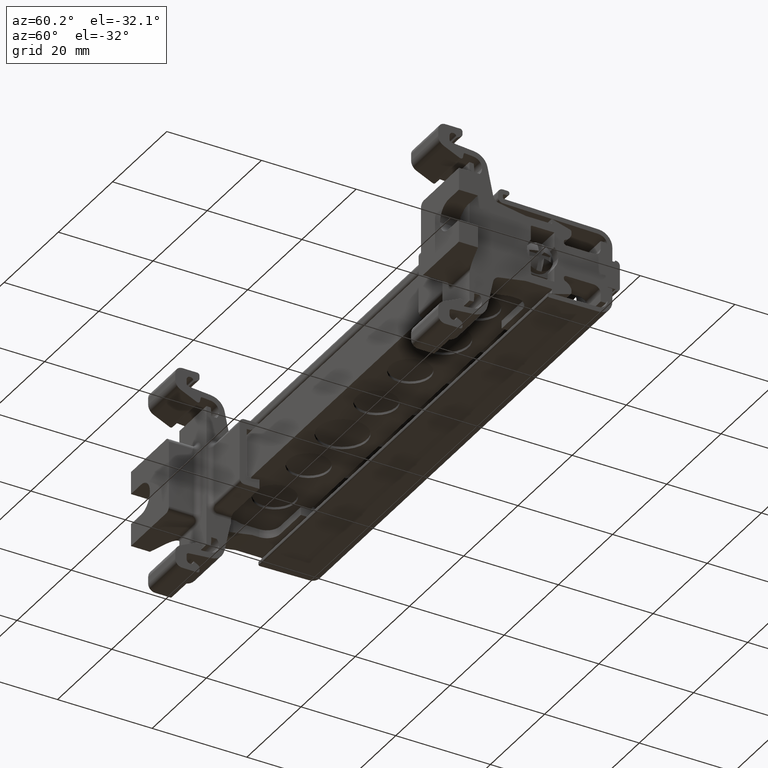
[diagram: clean part render]
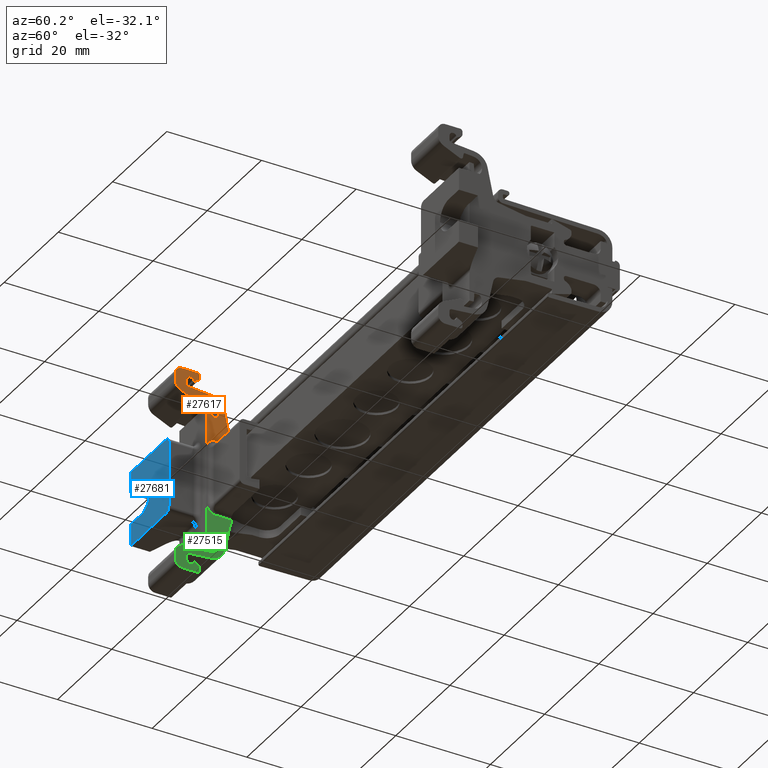
[diagram: same view with three faces highlighted in distinct colors, each labeled with its STEP entity id]
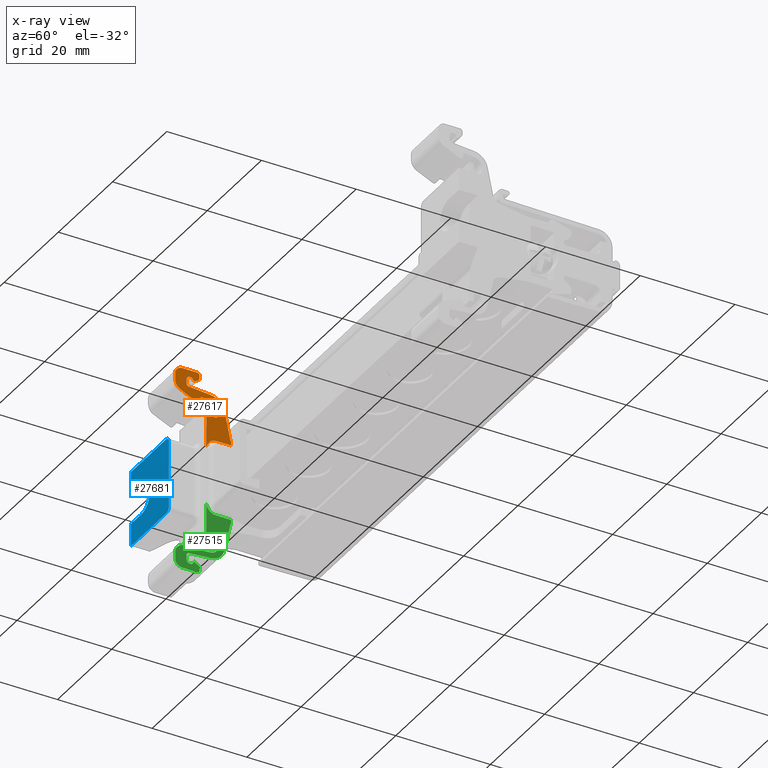
[diagram: x-ray of the same camera — body ghosted, the three highlighted faces saturated]
A machine part, auxiliary view with three faces highlighted in distinct colors.
The next image is the same camera in x-ray (body ghosted, the three faces saturated) — at least one of them is partly hidden behind the body in this view.
Their STEP definitions:

[orange] entity #27617 — the highlighted planar face has unit normal (1, -0, 0).
#2 = ORIENTED_EDGE ( 'NONE', *, *, #17603, .T. ) ;
#5 = ORIENTED_EDGE ( 'NONE', *, *, #17605, .T. ) ;
#7 = ORIENTED_EDGE ( 'NONE', *, *, #17553, .T. ) ;
#20 = ORIENTED_EDGE ( 'NONE', *, *, #17567, .T. ) ;
#21 = ORIENTED_EDGE ( 'NONE', *, *, #17624, .T. ) ;
#22 = ORIENTED_EDGE ( 'NONE', *, *, #17576, .T. ) ;
#33 = ORIENTED_EDGE ( 'NONE', *, *, #10525, .T. ) ;
#35 = ORIENTED_EDGE ( 'NONE', *, *, #17746, .F. ) ;
#41 = ORIENTED_EDGE ( 'NONE', *, *, #17616, .T. ) ;
#54 = ORIENTED_EDGE ( 'NONE', *, *, #17560, .T. ) ;
#57 = ORIENTED_EDGE ( 'NONE', *, *, #17552, .T. ) ;
#62 = ORIENTED_EDGE ( 'NONE', *, *, #17611, .T. ) ;
#1207 = ORIENTED_EDGE ( 'NONE', *, *, #17548, .T. ) ;
#1208 = ORIENTED_EDGE ( 'NONE', *, *, #17604, .T. ) ;
#1210 = ORIENTED_EDGE ( 'NONE', *, *, #17592, .T. ) ;
#1212 = ORIENTED_EDGE ( 'NONE', *, *, #17575, .T. ) ;
#1215 = ORIENTED_EDGE ( 'NONE', *, *, #17569, .T. ) ;
#1216 = ORIENTED_EDGE ( 'NONE', *, *, #17554, .F. ) ;
#1225 = ORIENTED_EDGE ( 'NONE', *, *, #17623, .T. ) ;
#1231 = ORIENTED_EDGE ( 'NONE', *, *, #17610, .T. ) ;
#1232 = ORIENTED_EDGE ( 'NONE', *, *, #17587, .T. ) ;
#1237 = ORIENTED_EDGE ( 'NONE', *, *, #17573, .T. ) ;
#1238 = ORIENTED_EDGE ( 'NONE', *, *, #17710, .F. ) ;
#1246 = ORIENTED_EDGE ( 'NONE', *, *, #17586, .T. ) ;
#1249 = ORIENTED_EDGE ( 'NONE', *, *, #17571, .F. ) ;
#1250 = ORIENTED_EDGE ( 'NONE', *, *, #10480, .T. ) ;
#1253 = ORIENTED_EDGE ( 'NONE', *, *, #17768, .T. ) ;
#1255 = ORIENTED_EDGE ( 'NONE', *, *, #17620, .T. ) ;
#1256 = ORIENTED_EDGE ( 'NONE', *, *, #26819, .T. ) ;
#1259 = ORIENTED_EDGE ( 'NONE', *, *, #17596, .T. ) ;
#1262 = ORIENTED_EDGE ( 'NONE', *, *, #17588, .T. ) ;
#1263 = ORIENTED_EDGE ( 'NONE', *, *, #17639, .T. ) ;
#3205 = AXIS2_PLACEMENT_3D ( 'NONE', #18167, #18178, #18182 ) ;
#5307 = EDGE_LOOP ( 'NONE', ( #1249, #62, #22, #1262, #1231, #1215, #1212, #1210, #1232, #1259, #2, #20, #41, #1237, #54, #5, #1208, #1263, #1255, #1246, #1256, #1216, #7, #1207, #1250, #57, #33, #1238, #35, #1253, #21, #1225 ) ) ;
#5889 = CARTESIAN_POINT ( 'NONE',  ( -51.95269769582420600, 44.64504681959599700, 52.51835480252169900 ) ) ;
#5891 = DIRECTION ( 'NONE',  ( -1.000000000000000000, 7.897574987183420400E-015, -3.511194205269045200E-015 ) ) ;
#5892 = DIRECTION ( 'NONE',  ( -6.938893903906565700E-015, -0.9999999999999851200, -1.731738814847284500E-007 ) ) ;
#7301 = VERTEX_POINT ( 'NONE', #15322 ) ;
#7308 = VERTEX_POINT ( 'NONE', #23636 ) ;
#7312 = VERTEX_POINT ( 'NONE', #23626 ) ;
#7316 = VERTEX_POINT ( 'NONE', #23638 ) ;
#7332 = VERTEX_POINT ( 'NONE', #23652 ) ;
#7342 = VERTEX_POINT ( 'NONE', #23639 ) ;
#7357 = VERTEX_POINT ( 'NONE', #23644 ) ;
#7361 = VERTEX_POINT ( 'NONE', #23671 ) ;
#7362 = VERTEX_POINT ( 'NONE', #23614 ) ;
#7363 = VERTEX_POINT ( 'NONE', #23631 ) ;
#7365 = VERTEX_POINT ( 'NONE', #23623 ) ;
#7366 = VERTEX_POINT ( 'NONE', #23632 ) ;
#7368 = VERTEX_POINT ( 'NONE', #23702 ) ;
#7369 = VERTEX_POINT ( 'NONE', #23690 ) ;
#7372 = VERTEX_POINT ( 'NONE', #23688 ) ;
#7373 = VERTEX_POINT ( 'NONE', #23699 ) ;
#7379 = VERTEX_POINT ( 'NONE', #23704 ) ;
#7380 = VERTEX_POINT ( 'NONE', #23721 ) ;
#7387 = VERTEX_POINT ( 'NONE', #23709 ) ;
#7398 = VERTEX_POINT ( 'NONE', #23725 ) ;
#7399 = VERTEX_POINT ( 'NONE', #23703 ) ;
#7403 = VERTEX_POINT ( 'NONE', #23735 ) ;
#7404 = VERTEX_POINT ( 'NONE', #23706 ) ;
#7408 = VERTEX_POINT ( 'NONE', #23691 ) ;
#7409 = VERTEX_POINT ( 'NONE', #23705 ) ;
#7415 = VERTEX_POINT ( 'NONE', #23700 ) ;
#7416 = VERTEX_POINT ( 'NONE', #23731 ) ;
#7423 = VERTEX_POINT ( 'NONE', #23677 ) ;
#7426 = VERTEX_POINT ( 'NONE', #23680 ) ;
#7433 = VERTEX_POINT ( 'NONE', #23745 ) ;
#10480 = EDGE_CURVE ( 'NONE', #7301, #7368, #22672, .T. ) ;
#10525 = EDGE_CURVE ( 'NONE', #7316, #7357, #22839, .T. ) ;
#12797 = LINE ( 'NONE', #12834, #20196 ) ;
#12803 = DIRECTION ( 'NONE',  ( 1.000000000000000000, -7.897574987183420400E-015, 3.511194205269045200E-015 ) ) ;
#12805 = LINE ( 'NONE', #12806, #20244 ) ;
#12806 = CARTESIAN_POINT ( 'NONE',  ( -51.95269769582429800, 41.28123955800514700, 57.53060234232180600 ) ) ;
#12810 = CARTESIAN_POINT ( 'NONE',  ( -51.95269769582418500, 48.88003733662787200, 47.85295847066351600 ) ) ;
#12811 = DIRECTION ( 'NONE',  ( 5.042221445841812300E-015, 0.2031293010246979800, -0.9791519223620088800 ) ) ;
#12816 = DIRECTION ( 'NONE',  ( 6.250635833653541500E-015, 0.8660322215516831300, 0.4999881910948060800 ) ) ;
#12821 = DIRECTION ( 'NONE',  ( -1.000000000000000000, 7.897574987183420400E-015, -3.511194208363125300E-015 ) ) ;
#12823 = CARTESIAN_POINT ( 'NONE',  ( -51.95269769582429800, 40.52224083797240400, 57.53060022804000800 ) ) ;
#12825 = CARTESIAN_POINT ( 'NONE',  ( -51.95269769582429800, 39.36598576649544900, 56.71503077427480100 ) ) ;
#12831 = DIRECTION ( 'NONE',  ( -9.142168123262904200E-015, -1.000000000000000000, 0.0000000000000000000 ) ) ;
#12834 = CARTESIAN_POINT ( 'NONE',  ( -51.95269769582420600, 44.92394467542335000, 55.70617780505300200 ) ) ;
#12835 = LINE ( 'NONE', #12810, #20229 ) ;
#12838 = DIRECTION ( 'NONE',  ( -6.938893903907648100E-015, -0.9999999999999850100, -1.731738814847554800E-007 ) ) ;
#12840 = DIRECTION ( 'NONE',  ( -8.173542609765338500E-015, -0.9961947123350145500, 0.08715557994619575800 ) ) ;
#12845 = DIRECTION ( 'NONE',  ( 0.0000000000000000000, -4.039727375448119700E-006, 0.9999999999918401900 ) ) ;
#12847 = DIRECTION ( 'NONE',  ( -1.371325741291665700E-014, -1.000000000000000000, 0.0000000000000000000 ) ) ;
#12849 = DIRECTION ( 'NONE',  ( -1.000000000000000000, 7.897574987183420400E-015, -3.511194205269045200E-015 ) ) ;
#12850 = DIRECTION ( 'NONE',  ( -1.000000000000000000, 7.897574987183420400E-015, -3.511194208363125300E-015 ) ) ;
#12854 = CARTESIAN_POINT ( 'NONE',  ( -51.95269769582429800, 40.26324495096410100, 56.61584533913990200 ) ) ;
#12856 = CARTESIAN_POINT ( 'NONE',  ( -51.95269769582420600, 42.49563694983555700, 58.52385799001640300 ) ) ;
#12865 = CARTESIAN_POINT ( 'NONE',  ( -51.95269769582420600, 41.98963799605480300, 58.52385615666229800 ) ) ;
#12866 = DIRECTION ( 'NONE',  ( 1.387778780781444400E-014, 1.000000000000000000, 0.0000000000000000000 ) ) ;
#12870 = CARTESIAN_POINT ( 'NONE',  ( -51.95269769582429800, 41.98963583581539900, 59.17392918536440800 ) ) ;
#12873 = DIRECTION ( 'NONE',  ( 1.000000000000000000, -7.897574987183420400E-015, 3.511194208363125300E-015 ) ) ;
#12874 = DIRECTION ( 'NONE',  ( -1.371327003883342800E-014, -1.000000000000000000, 0.0000000000000000000 ) ) ;
#12877 = DIRECTION ( 'NONE',  ( -6.938893903906565700E-015, -0.9999999999999851200, -1.731738814847284500E-007 ) ) ;
#12881 = DIRECTION ( 'NONE',  ( 1.000000000000000000, -7.897574987183420400E-015, 3.511194208363125300E-015 ) ) ;
#12887 = CARTESIAN_POINT ( 'NONE',  ( -51.95269769582420600, 44.64504681959599700, 52.51835480252169900 ) ) ;
#12888 = LINE ( 'NONE', #12856, #20211 ) ;
#12894 = LINE ( 'NONE', #12898, #20279 ) ;
#12898 = CARTESIAN_POINT ( 'NONE',  ( -51.95269769582429800, 39.76324495096650200, 56.61584379062200200 ) ) ;
#12900 = DIRECTION ( 'NONE',  ( 0.0000000000000000000, -3.097035688948970800E-006, 0.9999999999952042800 ) ) ;
#12908 = DIRECTION ( 'NONE',  ( -6.664219426855471200E-015, -1.000000000000000000, -4.442812951236985500E-015 ) ) ;
#12909 = DIRECTION ( 'NONE',  ( -2.086763369158764800E-015, 0.1736115906440594800, 0.9848142035907279100 ) ) ;
#12914 = LINE ( 'NONE', #12938, #20189 ) ;
#12915 = DIRECTION ( 'NONE',  ( -1.387778780781442800E-014, -0.9999999999999850100, -1.731738918930855100E-007 ) ) ;
#12917 = CARTESIAN_POINT ( 'NONE',  ( -51.95269769582420600, 44.64504681959599700, 52.51835480252169900 ) ) ;
#12918 = DIRECTION ( 'NONE',  ( -8.673617587638691200E-015, -0.9999999999999850100, -1.731738795611567800E-007 ) ) ;
#12923 = CARTESIAN_POINT ( 'NONE',  ( -51.95269769582420600, 42.60328566554729700, 53.69303677529969600 ) ) ;
#12925 = DIRECTION ( 'NONE',  ( 1.000000000000000000, -7.897574987183420400E-015, 3.511194205269045200E-015 ) ) ;
#12928 = DIRECTION ( 'NONE',  ( 1.000000000000000000, -7.897574987183420400E-015, 3.511194205269045200E-015 ) ) ;
#12931 = CARTESIAN_POINT ( 'NONE',  ( -51.95269769582420600, 42.11087856375189600, 53.77984257062180300 ) ) ;
#12933 = LINE ( 'NONE', #12923, #20190 ) ;
#12938 = CARTESIAN_POINT ( 'NONE',  ( -51.95269769582429800, 41.98963461062935200, 59.67992767326950300 ) ) ;
#12946 = DIRECTION ( 'NONE',  ( 3.511195572921190500E-015, 1.731736892445320000E-007, -0.9999999999999850100 ) ) ;
#12947 = LINE ( 'NONE', #12969, #20304 ) ;
#12948 = DIRECTION ( 'NONE',  ( -5.314544553643840600E-015, -0.2508007137987740000, 0.9680387399056019600 ) ) ;
#12950 = CARTESIAN_POINT ( 'NONE',  ( -51.95269769582420600, 49.02563120575620600, 47.21495201310559500 ) ) ;
#12952 = CARTESIAN_POINT ( 'NONE',  ( -51.95269769582409900, 50.47768931561480300, 47.59115308380379600 ) ) ;
#12954 = DIRECTION ( 'NONE',  ( -1.000000000000000000, 7.897574987183420400E-015, -3.511194208363125300E-015 ) ) ;
#12969 = CARTESIAN_POINT ( 'NONE',  ( -51.95269769582420600, 43.05277200151800100, 54.66530018249660100 ) ) ;
#12970 = LINE ( 'NONE', #12950, #20266 ) ;
#12972 = DIRECTION ( 'NONE',  ( 9.251858538542620400E-015, 1.000000000000000000, 0.0000000000000000000 ) ) ;
#12976 = LINE ( 'NONE', #12980, #20254 ) ;
#12980 = CARTESIAN_POINT ( 'NONE',  ( -51.95269769582429800, 37.36598549717820800, 58.27021652569899900 ) ) ;
#12986 = DIRECTION ( 'NONE',  ( 8.173542609765152400E-015, 0.9961947123350202200, -0.08715557994613090700 ) ) ;
#13005 = CARTESIAN_POINT ( 'NONE',  ( -51.95269769582420600, 43.02662532753465300, 54.36644176879550400 ) ) ;
#13006 = DIRECTION ( 'NONE',  ( 0.0000000000000000000, -0.9999999999999850100, -1.731738826410915800E-007 ) ) ;
#13057 = VERTEX_POINT ( 'NONE', #22310 ) ;
#13061 = DIRECTION ( 'NONE',  ( -1.000000000000000000, 7.897574987183420400E-015, -3.511194205269045200E-015 ) ) ;
#13065 = VERTEX_POINT ( 'NONE', #21216 ) ;
#13526 = DIRECTION ( 'NONE',  ( 1.000000000000000000, -7.897574987183420400E-015, 3.511194208363125300E-015 ) ) ;
#13547 = CARTESIAN_POINT ( 'NONE',  ( -51.95269769582420600, 45.96882648293110000, 44.11624998369200100 ) ) ;
#13592 = DIRECTION ( 'NONE',  ( -6.938893903907222100E-015, -1.000000000000000000, 3.469446951953611000E-015 ) ) ;
#13745 = LINE ( 'NONE', #13908, #20397 ) ;
#13908 = CARTESIAN_POINT ( 'NONE',  ( -51.95269769582420600, 47.58809457843019400, 46.11624998369180200 ) ) ;
#13912 = DIRECTION ( 'NONE',  ( -7.897574987183881100E-015, -1.000000000000000000, 1.313518572567621900E-013 ) ) ;
#13970 = CARTESIAN_POINT ( 'NONE',  ( -51.95269769582409900, 49.14653714227029700, 45.11624998369160300 ) ) ;
#13996 = DIRECTION ( 'NONE',  ( -4.133769213702985100E-015, 0.0000000000000000000, 1.000000000000000000 ) ) ;
#14003 = LINE ( 'NONE', #13970, #21051 ) ;
#14746 = LINE ( 'NONE', #14769, #20165 ) ;
#14748 = DIRECTION ( 'NONE',  ( -3.511195572923805200E-015, -1.731740200024760200E-007, 0.9999999999999850100 ) ) ;
#14750 = DIRECTION ( 'NONE',  ( -8.173542609765183900E-015, -0.9961947123350194400, 0.08715557994613965000 ) ) ;
#14759 = CARTESIAN_POINT ( 'NONE',  ( -51.95269769582420600, 44.87820380573425900, 52.99986615940319700 ) ) ;
#14761 = DIRECTION ( 'NONE',  ( 7.897574987183420400E-015, 1.000000000000000000, 6.526769278752017400E-031 ) ) ;
#14769 = CARTESIAN_POINT ( 'NONE',  ( -51.95269769582420600, 44.96882679718349600, 51.26480513633030300 ) ) ;
#14791 = LINE ( 'NONE', #14759, #20176 ) ;
#14793 = LINE ( 'NONE', #14813, #20127 ) ;
#14797 = DIRECTION ( 'NONE',  ( -1.000000000000000000, 7.897574987183420400E-015, -3.511194205269045200E-015 ) ) ;
#14813 = CARTESIAN_POINT ( 'NONE',  ( -51.95269769582417800, 50.47768931561450500, 51.17200985974286500 ) ) ;
#14814 = CARTESIAN_POINT ( 'NONE',  ( -51.95269769582420600, 45.46882679718349600, 51.26480522291720400 ) ) ;
#14816 = DIRECTION ( 'NONE',  ( -1.387778780781000100E-014, -0.9999999999999851200, -1.731738780152424300E-007 ) ) ;
#14835 = CARTESIAN_POINT ( 'NONE',  ( -51.95269769582429800, 38.86598570617785200, 58.17992767326950300 ) ) ;
#14851 = CARTESIAN_POINT ( 'NONE',  ( -51.95269769582429800, 38.52068015481055600, 54.90244741816310600 ) ) ;
#14854 = DIRECTION ( 'NONE',  ( 8.641522570421947900E-015, 0.9062916780557625000, -0.4226528058428927800 ) ) ;
#14859 = DIRECTION ( 'NONE',  ( 1.000000000000000000, -7.897574987183420400E-015, 3.511194208363125300E-015 ) ) ;
#14861 = LINE ( 'NONE', #14851, #20228 ) ;
#14868 = DIRECTION ( 'NONE',  ( 9.251858538542962800E-015, 1.000000000000000000, 0.0000000000000000000 ) ) ;
#15322 = CARTESIAN_POINT ( 'NONE',  ( -51.95269769582420600, 44.96882667606955400, 51.96418201774530100 ) ) ;
#15934 = CIRCLE ( 'NONE', #15947, 2.000000000000191000 ) ;
#15947 = AXIS2_PLACEMENT_3D ( 'NONE', #5889, #5891, #5892 ) ;
#17548 = EDGE_CURVE ( 'NONE', #7372, #7301, #14746, .T. ) ;
#17552 = EDGE_CURVE ( 'NONE', #7368, #7316, #14791, .T. ) ;
#17553 = EDGE_CURVE ( 'NONE', #7366, #7372, #20172, .T. ) ;
#17554 = EDGE_CURVE ( 'NONE', #7366, #13065, #14793, .T. ) ;
#17560 = EDGE_CURVE ( 'NONE', #7362, #7342, #14861, .T. ) ;
#17567 = EDGE_CURVE ( 'NONE', #7404, #7408, #20215, .T. ) ;
#17569 = EDGE_CURVE ( 'NONE', #7369, #7416, #20216, .T. ) ;
#17571 = EDGE_CURVE ( 'NONE', #7426, #7365, #12835, .T. ) ;
#17573 = EDGE_CURVE ( 'NONE', #7312, #7362, #20205, .T. ) ;
#17575 = EDGE_CURVE ( 'NONE', #7416, #7380, #12805, .T. ) ;
#17576 = EDGE_CURVE ( 'NONE', #7373, #7409, #12797, .T. ) ;
#17586 = EDGE_CURVE ( 'NONE', #7332, #13057, #20246, .T. ) ;
#17587 = EDGE_CURVE ( 'NONE', #7415, #7403, #12888, .T. ) ;
#17588 = EDGE_CURVE ( 'NONE', #7409, #7363, #20212, .T. ) ;
#17592 = EDGE_CURVE ( 'NONE', #7380, #7415, #20214, .T. ) ;
#17596 = EDGE_CURVE ( 'NONE', #7403, #7379, #20226, .T. ) ;
#17603 = EDGE_CURVE ( 'NONE', #7379, #7404, #12914, .T. ) ;
#17604 = EDGE_CURVE ( 'NONE', #7308, #7399, #12933, .T. ) ;
#17605 = EDGE_CURVE ( 'NONE', #7342, #7308, #20191, .T. ) ;
#17610 = EDGE_CURVE ( 'NONE', #7363, #7369, #12894, .T. ) ;
#17611 = EDGE_CURVE ( 'NONE', #7426, #7373, #20273, .T. ) ;
#17616 = EDGE_CURVE ( 'NONE', #7408, #7312, #12976, .T. ) ;
#17620 = EDGE_CURVE ( 'NONE', #7361, #7332, #12947, .T. ) ;
#17623 = EDGE_CURVE ( 'NONE', #7423, #7365, #12970, .T. ) ;
#17624 = EDGE_CURVE ( 'NONE', #7387, #7423, #20296, .T. ) ;
#17639 = EDGE_CURVE ( 'NONE', #7399, #7361, #20247, .T. ) ;
#17710 = EDGE_CURVE ( 'NONE', #7433, #7357, #20399, .T. ) ;
#17746 = EDGE_CURVE ( 'NONE', #7398, #7433, #13745, .T. ) ;
#17768 = EDGE_CURVE ( 'NONE', #7398, #7387, #14003, .T. ) ;
#18167 = CARTESIAN_POINT ( 'NONE',  ( -51.95269769582409900, 50.47768931561450500, 28.56414688357875100 ) ) ;
#18178 = DIRECTION ( 'NONE',  ( 1.000000000000000000, -7.897574987183420400E-015, 3.511194208363125300E-015 ) ) ;
#18180 = FACE_OUTER_BOUND ( 'NONE', #5307, .T. ) ;
#18182 = DIRECTION ( 'NONE',  ( -7.897574987183420400E-015, -1.000000000000000000, 0.0000000000000000000 ) ) ;
#18184 = PLANE ( 'NONE',  #3205 ) ;
#20127 = VECTOR ( 'NONE', #14761, 1000.000000000000000 ) ;
#20165 = VECTOR ( 'NONE', #14748, 1000.000000000000000 ) ;
#20172 = CIRCLE ( 'NONE', #20177, 0.5000000000001605400 ) ;
#20176 = VECTOR ( 'NONE', #14750, 1000.000000000000000 ) ;
#20177 = AXIS2_PLACEMENT_3D ( 'NONE', #14814, #14797, #14816 ) ;
#20186 = AXIS2_PLACEMENT_3D ( 'NONE', #12865, #12881, #12847 ) ;
#20189 = VECTOR ( 'NONE', #12908, 1000.000000000000000 ) ;
#20190 = VECTOR ( 'NONE', #12909, 999.9999999999998900 ) ;
#20191 = CIRCLE ( 'NONE', #20192, 0.5000000000000010000 ) ;
#20192 = AXIS2_PLACEMENT_3D ( 'NONE', #12931, #12925, #12915 ) ;
#20196 = VECTOR ( 'NONE', #12840, 1000.000000000000000 ) ;
#20202 = AXIS2_PLACEMENT_3D ( 'NONE', #14835, #14859, #14868 ) ;
#20205 = CIRCLE ( 'NONE', #20217, 1.999999999999879000 ) ;
#20207 = AXIS2_PLACEMENT_3D ( 'NONE', #12887, #12849, #12877 ) ;
#20209 = AXIS2_PLACEMENT_3D ( 'NONE', #12823, #12821, #12831 ) ;
#20211 = VECTOR ( 'NONE', #12845, 1000.000000000000100 ) ;
#20212 = CIRCLE ( 'NONE', #20221, 0.5000000000000004400 ) ;
#20214 = CIRCLE ( 'NONE', #20186, 0.5059989537840523500 ) ;
#20215 = CIRCLE ( 'NONE', #20202, 1.500000000000001300 ) ;
#20216 = CIRCLE ( 'NONE', #20209, 0.7589987200356460600 ) ;
#20217 = AXIS2_PLACEMENT_3D ( 'NONE', #12825, #12803, #12838 ) ;
#20221 = AXIS2_PLACEMENT_3D ( 'NONE', #12854, #12850, #12866 ) ;
#20226 = CIRCLE ( 'NONE', #20227, 0.5059984879067919200 ) ;
#20227 = AXIS2_PLACEMENT_3D ( 'NONE', #12870, #12873, #12874 ) ;
#20228 = VECTOR ( 'NONE', #14854, 1000.000000000000000 ) ;
#20229 = VECTOR ( 'NONE', #12811, 1000.000000000000200 ) ;
#20244 = VECTOR ( 'NONE', #12816, 1000.000000000000100 ) ;
#20246 = CIRCLE ( 'NONE', #20207, 2.000000000000191000 ) ;
#20247 = CIRCLE ( 'NONE', #20264, 0.3000000000002351300 ) ;
#20254 = VECTOR ( 'NONE', #12946, 1000.000000000000000 ) ;
#20264 = AXIS2_PLACEMENT_3D ( 'NONE', #13005, #13061, #13006 ) ;
#20266 = VECTOR ( 'NONE', #12948, 999.9999999999998900 ) ;
#20273 = CIRCLE ( 'NONE', #20295, 3.199999923352062800 ) ;
#20277 = AXIS2_PLACEMENT_3D ( 'NONE', #12952, #12954, #12972 ) ;
#20279 = VECTOR ( 'NONE', #12900, 1000.000000000000000 ) ;
#20295 = AXIS2_PLACEMENT_3D ( 'NONE', #12917, #12928, #12918 ) ;
#20296 = CIRCLE ( 'NONE', #20277, 1.500000000000056800 ) ;
#20304 = VECTOR ( 'NONE', #12986, 1000.000000000000000 ) ;
#20397 = VECTOR ( 'NONE', #13912, 1000.000000000000000 ) ;
#20399 = CIRCLE ( 'NONE', #20405, 2.000000000000001800 ) ;
#20405 = AXIS2_PLACEMENT_3D ( 'NONE', #13547, #13526, #13592 ) ;
#20757 = VECTOR ( 'NONE', #22676, 999.9999999999998900 ) ;
#20826 = VECTOR ( 'NONE', #22886, 1000.000000000000000 ) ;
#21051 = VECTOR ( 'NONE', #13996, 1000.000000000000000 ) ;
#21216 = CARTESIAN_POINT ( 'NONE',  ( -51.95269769582419200, 46.12401784536173500, 51.17200985974284300 ) ) ;
#22310 = CARTESIAN_POINT ( 'NONE',  ( -51.95269769582419200, 46.64504681959616100, 52.51835514886948900 ) ) ;
#22672 = LINE ( 'NONE', #22693, #20757 ) ;
#22676 = DIRECTION ( 'NONE',  ( -4.186240814702636300E-015, -0.08716743514127640900, 0.9961936750707121000 ) ) ;
#22693 = CARTESIAN_POINT ( 'NONE',  ( -51.95269769582420600, 44.96882667606955400, 51.96418201774520900 ) ) ;
#22839 = LINE ( 'NONE', #22845, #20826 ) ;
#22845 = CARTESIAN_POINT ( 'NONE',  ( -51.95269769582420600, 43.96882648293839700, 49.54146295254189900 ) ) ;
#22886 = DIRECTION ( 'NONE',  ( 3.631720400235105500E-015, 0.0000000000000000000, -1.000000000000000000 ) ) ;
#23614 = CARTESIAN_POINT ( 'NONE',  ( -51.95269769582429800, 38.52068015481050600, 54.90244741816300700 ) ) ;
#23623 = CARTESIAN_POINT ( 'NONE',  ( -51.95269769582418500, 48.95920517769092600, 47.47134270486755300 ) ) ;
#23626 = CARTESIAN_POINT ( 'NONE',  ( -51.95269769582429800, 37.36598576649549800, 56.71503042792700500 ) ) ;
#23631 = CARTESIAN_POINT ( 'NONE',  ( -51.95269769582429800, 39.76324495096650200, 56.61584379062200200 ) ) ;
#23632 = CARTESIAN_POINT ( 'NONE',  ( -51.95269769582422700, 44.97751323073784100, 51.17200985974286500 ) ) ;
#23636 = CARTESIAN_POINT ( 'NONE',  ( -51.95269769582420600, 42.60328566554729700, 53.69303677529969600 ) ) ;
#23638 = CARTESIAN_POINT ( 'NONE',  ( -51.95269769582420600, 43.96882648293824800, 53.07942621626440200 ) ) ;
#23639 = CARTESIAN_POINT ( 'NONE',  ( -51.95269769582420600, 41.89955216083065200, 53.32669673159379900 ) ) ;
#23644 = CARTESIAN_POINT ( 'NONE',  ( -51.95269769582420600, 43.96882648293839700, 44.11624998369200100 ) ) ;
#23652 = CARTESIAN_POINT ( 'NONE',  ( -51.95269769582420600, 44.81935797948820300, 54.51074422719160900 ) ) ;
#23671 = CARTESIAN_POINT ( 'NONE',  ( -51.95269769582420600, 43.05277200151790100, 54.66530018249630300 ) ) ;
#23677 = CARTESIAN_POINT ( 'NONE',  ( -51.95269769582420600, 49.02563120575620600, 47.21495201310559500 ) ) ;
#23680 = CARTESIAN_POINT ( 'NONE',  ( -51.95269769582420600, 47.79345559758349500, 53.09064989785660100 ) ) ;
#23688 = CARTESIAN_POINT ( 'NONE',  ( -51.95269769582420600, 44.96882679718330400, 51.26480513633030300 ) ) ;
#23690 = CARTESIAN_POINT ( 'NONE',  ( -51.95269769582429800, 39.76324211793969700, 57.53059811375830200 ) ) ;
#23691 = CARTESIAN_POINT ( 'NONE',  ( -51.95269769582429800, 37.36598570617785200, 58.17992761150650000 ) ) ;
#23699 = CARTESIAN_POINT ( 'NONE',  ( -51.95269769582420600, 44.92394467542330000, 55.70617780505309500 ) ) ;
#23700 = CARTESIAN_POINT ( 'NONE',  ( -51.95269769582420600, 42.49563694983555700, 58.52385799001640300 ) ) ;
#23702 = CARTESIAN_POINT ( 'NONE',  ( -51.95269769582420600, 44.87820380573420200, 52.99986615940330400 ) ) ;
#23703 = CARTESIAN_POINT ( 'NONE',  ( -51.95269769582420600, 42.73118106645745200, 54.41852524598881000 ) ) ;
#23704 = CARTESIAN_POINT ( 'NONE',  ( -51.95269769582429800, 41.98963461062935200, 59.67992767326950300 ) ) ;
#23705 = CARTESIAN_POINT ( 'NONE',  ( -51.95269769582429800, 40.21966716099105100, 56.11774798297240400 ) ) ;
#23706 = CARTESIAN_POINT ( 'NONE',  ( -51.95269769582429800, 38.86598570617785200, 59.67992767326950300 ) ) ;
#23709 = CARTESIAN_POINT ( 'NONE',  ( -51.95269769582420600, 49.14653714227029700, 46.89975313341289400 ) ) ;
#23721 = CARTESIAN_POINT ( 'NONE',  ( -51.95269769582420600, 42.24263066486790300, 58.08564427782130200 ) ) ;
#23725 = CARTESIAN_POINT ( 'NONE',  ( -51.95269769582420600, 49.14653714227029700, 46.11624998369160300 ) ) ;
#23731 = CARTESIAN_POINT ( 'NONE',  ( -51.95269769582429800, 41.28123955800514700, 57.53060234232180600 ) ) ;
#23735 = CARTESIAN_POINT ( 'NONE',  ( -51.95269769582420600, 42.49563432372144700, 59.17393005663210200 ) ) ;
#23745 = CARTESIAN_POINT ( 'NONE',  ( -51.95269769582421300, 45.96882648293136200, 46.11624998369201500 ) ) ;
#26819 = EDGE_CURVE ( 'NONE', #13057, #13065, #15934, .T. ) ;
#27617 = ADVANCED_FACE ( 'NONE', ( #18180 ), #18184, .T. ) ;

[blue] entity #27681 — the highlighted planar face has unit normal (-0, -1, -0).
#400 = ORIENTED_EDGE ( 'NONE', *, *, #17707, .T. ) ;
#403 = ORIENTED_EDGE ( 'NONE', *, *, #17823, .T. ) ;
#423 = ORIENTED_EDGE ( 'NONE', *, *, #17788, .T. ) ;
#446 = ORIENTED_EDGE ( 'NONE', *, *, #17761, .F. ) ;
#453 = ORIENTED_EDGE ( 'NONE', *, *, #17807, .T. ) ;
#479 = ORIENTED_EDGE ( 'NONE', *, *, #17753, .F. ) ;
#484 = ORIENTED_EDGE ( 'NONE', *, *, #17809, .T. ) ;
#545 = ORIENTED_EDGE ( 'NONE', *, *, #17835, .F. ) ;
#554 = ORIENTED_EDGE ( 'NONE', *, *, #17837, .F. ) ;
#569 = ORIENTED_EDGE ( 'NONE', *, *, #26808, .T. ) ;
#575 = ORIENTED_EDGE ( 'NONE', *, *, #17808, .F. ) ;
#3269 = AXIS2_PLACEMENT_3D ( 'NONE', #18019, #18048, #18053 ) ;
#5872 = DIRECTION ( 'NONE',  ( 7.897574987183420400E-015, 1.000000000000000000, 2.740021935547334900E-029 ) ) ;
#5884 = DIRECTION ( 'NONE',  ( -1.000000000000000000, 8.540177112501197500E-015, 0.0000000000000000000 ) ) ;
#5902 = CARTESIAN_POINT ( 'NONE',  ( -65.20269769582419900, 37.74082521647829900, 38.07764998369125200 ) ) ;
#7405 = VERTEX_POINT ( 'NONE', #23689 ) ;
#7428 = VERTEX_POINT ( 'NONE', #23684 ) ;
#7448 = VERTEX_POINT ( 'NONE', #23777 ) ;
#7459 = VERTEX_POINT ( 'NONE', #23761 ) ;
#7462 = VERTEX_POINT ( 'NONE', #23778 ) ;
#7467 = VERTEX_POINT ( 'NONE', #23738 ) ;
#7475 = VERTEX_POINT ( 'NONE', #23780 ) ;
#7477 = VERTEX_POINT ( 'NONE', #23737 ) ;
#7550 = VERTEX_POINT ( 'NONE', #23854 ) ;
#13069 = VERTEX_POINT ( 'NONE', #21162 ) ;
#13149 = VERTEX_POINT ( 'NONE', #21164 ) ;
#13509 = LINE ( 'NONE', #13554, #20349 ) ;
#13554 = CARTESIAN_POINT ( 'NONE',  ( -35.46027626311610700, 37.74082521647805100, 46.07664888101810200 ) ) ;
#13570 = DIRECTION ( 'NONE',  ( -1.000000000000000000, 7.897574987183420400E-015, -3.511194208363125300E-015 ) ) ;
#13834 = CARTESIAN_POINT ( 'NONE',  ( -35.46027626311600000, 37.74082521647805100, 30.07865108636455200 ) ) ;
#13892 = LINE ( 'NONE', #13834, #20404 ) ;
#13895 = DIRECTION ( 'NONE',  ( -1.000000000000000000, 7.897574987183420400E-015, -3.511194208363125300E-015 ) ) ;
#13925 = LINE ( 'NONE', #13933, #20582 ) ;
#13933 = CARTESIAN_POINT ( 'NONE',  ( -68.95269769582419900, 37.74082521647835600, 30.07865108636445200 ) ) ;
#13966 = DIRECTION ( 'NONE',  ( -3.552941225665730200E-015, 5.515564554018680000E-029, 1.000000000000000000 ) ) ;
#14160 = LINE ( 'NONE', #14222, #20269 ) ;
#14192 = DIRECTION ( 'NONE',  ( 1.000000000000000000, -7.897574987183420400E-015, 6.325164568388729900E-045 ) ) ;
#14222 = CARTESIAN_POINT ( 'NONE',  ( -35.46027626311610700, 37.74082521647805100, 41.32764998369124500 ) ) ;
#15861 = CIRCLE ( 'NONE', #15907, 3.250000000000002700 ) ;
#15907 = AXIS2_PLACEMENT_3D ( 'NONE', #5902, #5872, #5884 ) ;
#16101 = AXIS2_PLACEMENT_3D ( 'NONE', #16934, #16902, #16909 ) ;
#16109 = CIRCLE ( 'NONE', #16112, 1.000000000000000900 ) ;
#16112 = AXIS2_PLACEMENT_3D ( 'NONE', #16916, #16919, #16898 ) ;
#16126 = VECTOR ( 'NONE', #16905, 1000.000000000000000 ) ;
#16146 = VECTOR ( 'NONE', #17021, 1000.000000000000000 ) ;
#16155 = VECTOR ( 'NONE', #16959, 1000.000000000000000 ) ;
#16158 = CIRCLE ( 'NONE', #16101, 3.250000000000002700 ) ;
#16184 = CIRCLE ( 'NONE', #16191, 1.000000000000000900 ) ;
#16191 = AXIS2_PLACEMENT_3D ( 'NONE', #17001, #16999, #17014 ) ;
#16898 = DIRECTION ( 'NONE',  ( -1.000000000000000000, 6.938893903907222100E-015, -6.938893903907222100E-015 ) ) ;
#16901 = CARTESIAN_POINT ( 'NONE',  ( -54.95269769582430500, 37.74082521647810000, 71.07764998369130200 ) ) ;
#16902 = DIRECTION ( 'NONE',  ( 7.897574987183420400E-015, 1.000000000000000000, 2.740021935547334900E-029 ) ) ;
#16905 = DIRECTION ( 'NONE',  ( 3.511194208363125300E-015, -2.757782277009340000E-029, -1.000000000000000000 ) ) ;
#16909 = DIRECTION ( 'NONE',  ( -1.000000000000000000, 8.540177112501197500E-015, 0.0000000000000000000 ) ) ;
#16916 = CARTESIAN_POINT ( 'NONE',  ( -55.95269769582419900, 37.74082521647825000, 31.07865108636449800 ) ) ;
#16919 = DIRECTION ( 'NONE',  ( -7.897574987183420400E-015, -1.000000000000000000, 2.709602578543629900E-029 ) ) ;
#16920 = LINE ( 'NONE', #16901, #16126 ) ;
#16934 = CARTESIAN_POINT ( 'NONE',  ( -65.20269769582419900, 37.74082521647829900, 38.07764998369125200 ) ) ;
#16959 = DIRECTION ( 'NONE',  ( 3.469447191060520300E-015, 0.0000000000000000000, -1.000000000000000000 ) ) ;
#16968 = CARTESIAN_POINT ( 'NONE',  ( -68.95269769582419900, 37.74082521647835600, 46.07664888101800200 ) ) ;
#16970 = LINE ( 'NONE', #16968, #16155 ) ;
#16999 = DIRECTION ( 'NONE',  ( 7.897574987183420400E-015, 1.000000000000000000, 2.740021935547334900E-029 ) ) ;
#17001 = CARTESIAN_POINT ( 'NONE',  ( -55.95269769582419900, 37.74082521647825000, 45.07664888101799500 ) ) ;
#17014 = DIRECTION ( 'NONE',  ( -1.000000000000000000, 6.938893903907222100E-015, 0.0000000000000000000 ) ) ;
#17017 = LINE ( 'NONE', #17020, #16146 ) ;
#17020 = CARTESIAN_POINT ( 'NONE',  ( -35.46027626311605000, 37.74082521647805100, 34.82764998369140100 ) ) ;
#17021 = DIRECTION ( 'NONE',  ( 1.000000000000000000, -7.897574987183420400E-015, 7.022388416726250500E-015 ) ) ;
#17707 = EDGE_CURVE ( 'NONE', #7462, #7459, #13509, .T. ) ;
#17753 = EDGE_CURVE ( 'NONE', #7405, #7448, #13892, .T. ) ;
#17761 = EDGE_CURVE ( 'NONE', #7448, #7428, #13925, .T. ) ;
#17788 = EDGE_CURVE ( 'NONE', #7467, #7550, #14160, .T. ) ;
#17807 = EDGE_CURVE ( 'NONE', #7405, #7477, #16109, .T. ) ;
#17808 = EDGE_CURVE ( 'NONE', #7475, #7477, #16920, .T. ) ;
#17809 = EDGE_CURVE ( 'NONE', #7550, #13149, #16158, .T. ) ;
#17823 = EDGE_CURVE ( 'NONE', #7459, #7467, #16970, .T. ) ;
#17835 = EDGE_CURVE ( 'NONE', #7428, #13069, #17017, .T. ) ;
#17837 = EDGE_CURVE ( 'NONE', #7462, #7475, #16184, .T. ) ;
#18019 = CARTESIAN_POINT ( 'NONE',  ( -35.46027626311610700, 37.74082521647805100, 46.07664888101810200 ) ) ;
#18038 = FACE_OUTER_BOUND ( 'NONE', #18945, .T. ) ;
#18048 = DIRECTION ( 'NONE',  ( -7.897574987183420400E-015, -1.000000000000000000, -2.740021935547334900E-029 ) ) ;
#18053 = DIRECTION ( 'NONE',  ( -1.000000000000000000, 7.897574987183420400E-015, 0.0000000000000000000 ) ) ;
#18056 = PLANE ( 'NONE',  #3269 ) ;
#18945 = EDGE_LOOP ( 'NONE', ( #400, #403, #423, #484, #569, #545, #446, #479, #453, #575, #554 ) ) ;
#20269 = VECTOR ( 'NONE', #14192, 1000.000000000000000 ) ;
#20349 = VECTOR ( 'NONE', #13570, 1000.000000000000000 ) ;
#20404 = VECTOR ( 'NONE', #13895, 1000.000000000000000 ) ;
#20582 = VECTOR ( 'NONE', #13966, 1000.000000000000000 ) ;
#21162 = CARTESIAN_POINT ( 'NONE',  ( -65.20269769582419900, 37.74082521647829900, 34.82764998369120200 ) ) ;
#21164 = CARTESIAN_POINT ( 'NONE',  ( -61.95269769582419200, 37.74082521647827100, 38.07764998369125200 ) ) ;
#23684 = CARTESIAN_POINT ( 'NONE',  ( -68.95269769582419900, 37.74082521647835600, 34.82764998369115300 ) ) ;
#23689 = CARTESIAN_POINT ( 'NONE',  ( -55.95269769582419900, 37.74082521647825000, 30.07865108636450200 ) ) ;
#23737 = CARTESIAN_POINT ( 'NONE',  ( -54.95269769582420600, 37.74082521647810000, 31.07865108636449800 ) ) ;
#23738 = CARTESIAN_POINT ( 'NONE',  ( -68.95269769582419900, 37.74082521647835600, 41.32764998369124500 ) ) ;
#23761 = CARTESIAN_POINT ( 'NONE',  ( -68.95269769582419900, 37.74082521647835600, 46.07664888101800200 ) ) ;
#23777 = CARTESIAN_POINT ( 'NONE',  ( -68.95269769582419900, 37.74082521647835600, 30.07865108636445200 ) ) ;
#23778 = CARTESIAN_POINT ( 'NONE',  ( -55.95269769582419900, 37.74082521647825000, 46.07664888101800200 ) ) ;
#23780 = CARTESIAN_POINT ( 'NONE',  ( -54.95269769582420600, 37.74082521647810000, 45.07664888101799500 ) ) ;
#23854 = CARTESIAN_POINT ( 'NONE',  ( -65.20269769582419900, 37.74082521647829900, 41.32764998369124500 ) ) ;
#26808 = EDGE_CURVE ( 'NONE', #13149, #13069, #15861, .T. ) ;
#27681 = ADVANCED_FACE ( 'NONE', ( #18038 ), #18056, .T. ) ;

[green] entity #27515 — the highlighted planar face has unit normal (1, -0, 0).
#8 = ORIENTED_EDGE ( 'NONE', *, *, #10437, .F. ) ;
#14 = ORIENTED_EDGE ( 'NONE', *, *, #26885, .F. ) ;
#19 = ORIENTED_EDGE ( 'NONE', *, *, #10410, .F. ) ;
#34 = ORIENTED_EDGE ( 'NONE', *, *, #10482, .F. ) ;
#55 = ORIENTED_EDGE ( 'NONE', *, *, #17617, .F. ) ;
#58 = ORIENTED_EDGE ( 'NONE', *, *, #10470, .F. ) ;
#1209 = ORIENTED_EDGE ( 'NONE', *, *, #10510, .T. ) ;
#1211 = ORIENTED_EDGE ( 'NONE', *, *, #10496, .F. ) ;
#1213 = ORIENTED_EDGE ( 'NONE', *, *, #10458, .F. ) ;
#1214 = ORIENTED_EDGE ( 'NONE', *, *, #10422, .F. ) ;
#1218 = ORIENTED_EDGE ( 'NONE', *, *, #10407, .F. ) ;
#1219 = ORIENTED_EDGE ( 'NONE', *, *, #17555, .F. ) ;
#1221 = ORIENTED_EDGE ( 'NONE', *, *, #17618, .F. ) ;
#1223 = ORIENTED_EDGE ( 'NONE', *, *, #17602, .F. ) ;
#1224 = ORIENTED_EDGE ( 'NONE', *, *, #10505, .F. ) ;
#1233 = ORIENTED_EDGE ( 'NONE', *, *, #10456, .F. ) ;
#1234 = ORIENTED_EDGE ( 'NONE', *, *, #10478, .F. ) ;
#1239 = ORIENTED_EDGE ( 'NONE', *, *, #10518, .F. ) ;
#1241 = ORIENTED_EDGE ( 'NONE', *, *, #10536, .F. ) ;
#1243 = ORIENTED_EDGE ( 'NONE', *, *, #10447, .F. ) ;
#1244 = ORIENTED_EDGE ( 'NONE', *, *, #17584, .F. ) ;
#1247 = ORIENTED_EDGE ( 'NONE', *, *, #10433, .F. ) ;
#1248 = ORIENTED_EDGE ( 'NONE', *, *, #10427, .T. ) ;
#1254 = ORIENTED_EDGE ( 'NONE', *, *, #17566, .F. ) ;
#1257 = ORIENTED_EDGE ( 'NONE', *, *, #10484, .F. ) ;
#1258 = ORIENTED_EDGE ( 'NONE', *, *, #10514, .F. ) ;
#1260 = ORIENTED_EDGE ( 'NONE', *, *, #10440, .F. ) ;
#5073 = EDGE_LOOP ( 'NONE', ( #1248, #14713, #14721, #14723, #14731, #14733, #1257, #1219, #1223, #1254, #55, #1209, #1221, #14, #1244, #1241, #1211, #8, #1247, #1243, #1234, #1258, #19, #1218, #58, #1239, #1213, #1233, #1214, #1224, #1260, #34 ) ) ;
#6084 = DIRECTION ( 'NONE',  ( -6.938893903906565700E-015, -0.9999999999999851200, 1.731738814847284500E-007 ) ) ;
#6100 = DIRECTION ( 'NONE',  ( 1.000000000000000000, -7.897574987183420400E-015, 3.511194211457205400E-015 ) ) ;
#6103 = CARTESIAN_POINT ( 'NONE',  ( -51.95269769582409900, 44.64504681959599700, 23.63694516486085100 ) ) ;
#7242 = VERTEX_POINT ( 'NONE', #23376 ) ;
#7259 = VERTEX_POINT ( 'NONE', #14936 ) ;
#7260 = VERTEX_POINT ( 'NONE', #24802 ) ;
#7271 = CARTESIAN_POINT ( 'NONE',  ( -51.95269769582409900, 41.28123955800514700, 18.62469762506075100 ) ) ;
#7272 = CARTESIAN_POINT ( 'NONE',  ( -51.95269769582420600, 37.36598576649549800, 19.44026953945560300 ) ) ;
#7285 = VERTEX_POINT ( 'NONE', #23387 ) ;
#7286 = VERTEX_POINT ( 'NONE', #23388 ) ;
#7287 = VERTEX_POINT ( 'NONE', #7271 ) ;
#7288 = VERTEX_POINT ( 'NONE', #7272 ) ;
#7289 = VERTEX_POINT ( 'NONE', #23378 ) ;
#7311 = VERTEX_POINT ( 'NONE', #23633 ) ;
#7317 = VERTEX_POINT ( 'NONE', #23611 ) ;
#7318 = VERTEX_POINT ( 'NONE', #23645 ) ;
#7322 = VERTEX_POINT ( 'NONE', #23646 ) ;
#7324 = VERTEX_POINT ( 'NONE', #23620 ) ;
#7326 = VERTEX_POINT ( 'NONE', #23627 ) ;
#7327 = VERTEX_POINT ( 'NONE', #23612 ) ;
#7329 = VERTEX_POINT ( 'NONE', #23664 ) ;
#7330 = VERTEX_POINT ( 'NONE', #23672 ) ;
#7331 = VERTEX_POINT ( 'NONE', #23609 ) ;
#7334 = VERTEX_POINT ( 'NONE', #23666 ) ;
#7338 = VERTEX_POINT ( 'NONE', #23653 ) ;
#7339 = VERTEX_POINT ( 'NONE', #23668 ) ;
#7340 = VERTEX_POINT ( 'NONE', #23659 ) ;
#7345 = VERTEX_POINT ( 'NONE', #23610 ) ;
#7349 = VERTEX_POINT ( 'NONE', #23613 ) ;
#7352 = VERTEX_POINT ( 'NONE', #23654 ) ;
#7354 = VERTEX_POINT ( 'NONE', #23647 ) ;
#7356 = VERTEX_POINT ( 'NONE', #23669 ) ;
#7360 = VERTEX_POINT ( 'NONE', #23618 ) ;
#7434 = VERTEX_POINT ( 'NONE', #23776 ) ;
#7485 = VERTEX_POINT ( 'NONE', #23765 ) ;
#8387 = CARTESIAN_POINT ( 'NONE',  ( -51.95269769582409900, 50.47768931561450500, 47.59115308380379600 ) ) ;
#8390 = FACE_OUTER_BOUND ( 'NONE', #5073, .T. ) ;
#8391 = PLANE ( 'NONE',  #11342 ) ;
#8393 = DIRECTION ( 'NONE',  ( 1.000000000000000000, -7.897574987183420400E-015, 3.511194208363125300E-015 ) ) ;
#8427 = DIRECTION ( 'NONE',  ( -7.897574987183420400E-015, -1.000000000000000000, -3.041935700370329800E-031 ) ) ;
#10407 = EDGE_CURVE ( 'NONE', #7356, #7330, #20645, .T. ) ;
#10410 = EDGE_CURVE ( 'NONE', #7330, #7331, #23462, .T. ) ;
#10422 = EDGE_CURVE ( 'NONE', #7286, #7360, #23518, .T. ) ;
#10427 = EDGE_CURVE ( 'NONE', #7317, #7311, #23535, .T. ) ;
#10433 = EDGE_CURVE ( 'NONE', #7327, #7334, #23564, .T. ) ;
#10437 = EDGE_CURVE ( 'NONE', #7334, #7339, #20712, .T. ) ;
#10438 = EDGE_CURVE ( 'NONE', #7285, #7311, #23550, .T. ) ;
#10440 = EDGE_CURVE ( 'NONE', #7322, #7338, #23607, .T. ) ;
#10445 = EDGE_CURVE ( 'NONE', #7345, #7285, #20706, .T. ) ;
#10447 = EDGE_CURVE ( 'NONE', #7288, #7327, #20722, .T. ) ;
#10456 = EDGE_CURVE ( 'NONE', #7360, #7287, #20707, .T. ) ;
#10458 = EDGE_CURVE ( 'NONE', #7287, #7354, #22634, .T. ) ;
#10470 = EDGE_CURVE ( 'NONE', #7242, #7356, #22677, .T. ) ;
#10478 = EDGE_CURVE ( 'NONE', #7289, #7288, #22669, .T. ) ;
#10482 = EDGE_CURVE ( 'NONE', #7317, #7322, #20779, .T. ) ;
#10484 = EDGE_CURVE ( 'NONE', #7324, #7329, #22744, .T. ) ;
#10496 = EDGE_CURVE ( 'NONE', #7339, #7318, #22728, .T. ) ;
#10505 = EDGE_CURVE ( 'NONE', #7338, #7286, #20761, .T. ) ;
#10510 = EDGE_CURVE ( 'NONE', #7259, #7352, #22760, .T. ) ;
#10514 = EDGE_CURVE ( 'NONE', #7331, #7289, #20833, .T. ) ;
#10518 = EDGE_CURVE ( 'NONE', #7354, #7242, #20805, .T. ) ;
#10536 = EDGE_CURVE ( 'NONE', #7318, #7349, #20832, .T. ) ;
#11342 = AXIS2_PLACEMENT_3D ( 'NONE', #8387, #8393, #8427 ) ;
#12857 = LINE ( 'NONE', #12876, #20235 ) ;
#12858 = DIRECTION ( 'NONE',  ( 7.561502274698391500E-015, 0.9961947123350202200, 0.08715557994613090700 ) ) ;
#12876 = CARTESIAN_POINT ( 'NONE',  ( -51.95269769582409900, 43.05277200151800100, 21.48999978488600200 ) ) ;
#12916 = CARTESIAN_POINT ( 'NONE',  ( -51.95269769582409900, 44.96882667606955400, 24.19111794963734900 ) ) ;
#12924 = DIRECTION ( 'NONE',  ( 2.809418109929890500E-015, -0.08716743514127640900, -0.9961936750707121000 ) ) ;
#12937 = LINE ( 'NONE', #12916, #20239 ) ;
#12945 = CARTESIAN_POINT ( 'NONE',  ( -51.95269769582409900, 44.64504681959599700, 23.63694516486085100 ) ) ;
#12949 = CARTESIAN_POINT ( 'NONE',  ( -51.95269769582409900, 45.46882679718349600, 24.89049474446535400 ) ) ;
#12956 = DIRECTION ( 'NONE',  ( -1.387778780781000100E-014, -0.9999999999999851200, 1.731738780152424300E-007 ) ) ;
#12966 = DIRECTION ( 'NONE',  ( 1.000000000000000000, -7.897574987183420400E-015, 3.511194211457205400E-015 ) ) ;
#12978 = DIRECTION ( 'NONE',  ( -6.938893903906565700E-015, -0.9999999999999851200, 1.731738814847284500E-007 ) ) ;
#12984 = DIRECTION ( 'NONE',  ( 1.000000000000000000, -7.897574987183420400E-015, 3.511194211457205400E-015 ) ) ;
#13101 = VERTEX_POINT ( 'NONE', #21218 ) ;
#13128 = VERTEX_POINT ( 'NONE', #21197 ) ;
#13634 = CARTESIAN_POINT ( 'NONE',  ( -51.95269769582409900, 45.96882648293110000, 32.03904998369054600 ) ) ;
#13665 = DIRECTION ( 'NONE',  ( -6.938893903907222100E-015, -1.000000000000000000, -3.469446951953611000E-015 ) ) ;
#13670 = DIRECTION ( 'NONE',  ( -1.000000000000000000, 7.897574987183420400E-015, -3.511194208363125300E-015 ) ) ;
#13832 = LINE ( 'NONE', #13862, #20383 ) ;
#13858 = DIRECTION ( 'NONE',  ( 2.888619203023265000E-015, -5.515564554018680000E-029, -1.000000000000000000 ) ) ;
#13862 = CARTESIAN_POINT ( 'NONE',  ( -51.95269769582409900, 49.14653714227029700, 31.03904998369095100 ) ) ;
#14043 = DIRECTION ( 'NONE',  ( -7.897574987182950200E-015, -1.000000000000000000, -1.313518572567621900E-013 ) ) ;
#14065 = LINE ( 'NONE', #14117, #20606 ) ;
#14117 = CARTESIAN_POINT ( 'NONE',  ( -51.95269769582409900, 47.58809457843019400, 30.03904998369074900 ) ) ;
#14713 = ORIENTED_EDGE ( 'NONE', *, *, #10438, .F. ) ;
#14721 = ORIENTED_EDGE ( 'NONE', *, *, #10445, .F. ) ;
#14723 = ORIENTED_EDGE ( 'NONE', *, *, #17752, .F. ) ;
#14731 = ORIENTED_EDGE ( 'NONE', *, *, #17777, .T. ) ;
#14733 = ORIENTED_EDGE ( 'NONE', *, *, #17716, .T. ) ;
#14795 = LINE ( 'NONE', #14799, #20180 ) ;
#14799 = CARTESIAN_POINT ( 'NONE',  ( -51.95269769582409900, 44.87820380573425900, 23.15543380797930000 ) ) ;
#14834 = CARTESIAN_POINT ( 'NONE',  ( -51.95269769582409900, 44.96882679718349600, 24.89049483105229800 ) ) ;
#14836 = DIRECTION ( 'NONE',  ( -7.561502274698353700E-015, -0.9961947123350194400, -0.08715557994613965000 ) ) ;
#14862 = LINE ( 'NONE', #14834, #20234 ) ;
#14863 = DIRECTION ( 'NONE',  ( 3.511192843802345500E-015, -1.731740200024760200E-007, -0.9999999999999850100 ) ) ;
#14936 = CARTESIAN_POINT ( 'NONE',  ( -51.95269769582406400, 44.97751323073782700, 24.98329010763966100 ) ) ;
#15987 = AXIS2_PLACEMENT_3D ( 'NONE', #6103, #6100, #6084 ) ;
#16021 = CIRCLE ( 'NONE', #15987, 2.000000000000191000 ) ;
#17555 = EDGE_CURVE ( 'NONE', #7326, #7324, #14795, .T. ) ;
#17566 = EDGE_CURVE ( 'NONE', #7260, #7340, #14862, .T. ) ;
#17584 = EDGE_CURVE ( 'NONE', #7349, #13101, #12857, .T. ) ;
#17602 = EDGE_CURVE ( 'NONE', #7340, #7326, #12937, .T. ) ;
#17617 = EDGE_CURVE ( 'NONE', #7259, #7260, #20290, .T. ) ;
#17618 = EDGE_CURVE ( 'NONE', #13128, #7352, #20258, .T. ) ;
#17716 = EDGE_CURVE ( 'NONE', #7434, #7329, #20374, .T. ) ;
#17752 = EDGE_CURVE ( 'NONE', #7485, #7345, #13832, .T. ) ;
#17777 = EDGE_CURVE ( 'NONE', #7485, #7434, #14065, .T. ) ;
#20180 = VECTOR ( 'NONE', #14836, 1000.000000000000000 ) ;
#20234 = VECTOR ( 'NONE', #14863, 1000.000000000000000 ) ;
#20235 = VECTOR ( 'NONE', #12858, 1000.000000000000000 ) ;
#20239 = VECTOR ( 'NONE', #12924, 999.9999999999998900 ) ;
#20258 = CIRCLE ( 'NONE', #20259, 2.000000000000191000 ) ;
#20259 = AXIS2_PLACEMENT_3D ( 'NONE', #12945, #12984, #12978 ) ;
#20271 = AXIS2_PLACEMENT_3D ( 'NONE', #12949, #12966, #12956 ) ;
#20290 = CIRCLE ( 'NONE', #20271, 0.5000000000001605400 ) ;
#20374 = CIRCLE ( 'NONE', #20425, 2.000000000000001800 ) ;
#20383 = VECTOR ( 'NONE', #13858, 1000.000000000000000 ) ;
#20425 = AXIS2_PLACEMENT_3D ( 'NONE', #13634, #13670, #13665 ) ;
#20606 = VECTOR ( 'NONE', #14043, 1000.000000000000000 ) ;
#20635 = AXIS2_PLACEMENT_3D ( 'NONE', #23443, #23471, #23435 ) ;
#20644 = VECTOR ( 'NONE', #23482, 1000.000000000000000 ) ;
#20645 = CIRCLE ( 'NONE', #20635, 0.5059984879067919200 ) ;
#20675 = VECTOR ( 'NONE', #23537, 999.9999999999998900 ) ;
#20681 = VECTOR ( 'NONE', #23578, 1000.000000000000000 ) ;
#20683 = AXIS2_PLACEMENT_3D ( 'NONE', #23581, #23566, #23567 ) ;
#20697 = VECTOR ( 'NONE', #23522, 1000.000000000000000 ) ;
#20698 = AXIS2_PLACEMENT_3D ( 'NONE', #23569, #23605, #23608 ) ;
#20702 = VECTOR ( 'NONE', #23494, 1000.000000000000000 ) ;
#20703 = AXIS2_PLACEMENT_3D ( 'NONE', #23553, #23539, #23542 ) ;
#20706 = CIRCLE ( 'NONE', #20698, 1.500000000000056800 ) ;
#20707 = CIRCLE ( 'NONE', #20708, 0.7589987200356460600 ) ;
#20708 = AXIS2_PLACEMENT_3D ( 'NONE', #22631, #22638, #22632 ) ;
#20712 = CIRCLE ( 'NONE', #20703, 0.5000000000000010000 ) ;
#20715 = VECTOR ( 'NONE', #23536, 1000.000000000000200 ) ;
#20722 = CIRCLE ( 'NONE', #20683, 1.999999999999879000 ) ;
#20727 = AXIS2_PLACEMENT_3D ( 'NONE', #22768, #22763, #22757 ) ;
#20729 = AXIS2_PLACEMENT_3D ( 'NONE', #22701, #22746, #22719 ) ;
#20747 = VECTOR ( 'NONE', #22620, 1000.000000000000100 ) ;
#20752 = VECTOR ( 'NONE', #22703, 1000.000000000000000 ) ;
#20761 = CIRCLE ( 'NONE', #20727, 0.5000000000000004400 ) ;
#20763 = VECTOR ( 'NONE', #22749, 999.9999999999998900 ) ;
#20770 = VECTOR ( 'NONE', #22685, 1000.000000000000100 ) ;
#20779 = CIRCLE ( 'NONE', #20729, 3.199999923352062800 ) ;
#20780 = VECTOR ( 'NONE', #22722, 1000.000000000000000 ) ;
#20787 = AXIS2_PLACEMENT_3D ( 'NONE', #22858, #22864, #22859 ) ;
#20796 = VECTOR ( 'NONE', #22761, 1000.000000000000000 ) ;
#20805 = CIRCLE ( 'NONE', #20845, 0.5059989537840523500 ) ;
#20818 = AXIS2_PLACEMENT_3D ( 'NONE', #22809, #22835, #22810 ) ;
#20832 = CIRCLE ( 'NONE', #20787, 0.3000000000002351300 ) ;
#20833 = CIRCLE ( 'NONE', #20818, 1.500000000000001300 ) ;
#20845 = AXIS2_PLACEMENT_3D ( 'NONE', #22849, #22840, #22829 ) ;
#21197 = CARTESIAN_POINT ( 'NONE',  ( -51.95269769582408500, 46.64504681959616100, 23.63694481851305800 ) ) ;
#21218 = CARTESIAN_POINT ( 'NONE',  ( -51.95269769582409900, 44.81935797948820300, 21.64455574019095300 ) ) ;
#22620 = DIRECTION ( 'NONE',  ( 9.761747115297609800E-015, 0.8660322215516831300, -0.4999881910948060800 ) ) ;
#22631 = CARTESIAN_POINT ( 'NONE',  ( -51.95269769582409900, 40.52224083797240400, 18.62469973934250000 ) ) ;
#22632 = DIRECTION ( 'NONE',  ( -9.142168123262904200E-015, -1.000000000000000000, 0.0000000000000000000 ) ) ;
#22634 = LINE ( 'NONE', #22641, #20747 ) ;
#22638 = DIRECTION ( 'NONE',  ( 1.000000000000000000, -7.897574987183420400E-015, 3.511194208363125300E-015 ) ) ;
#22641 = CARTESIAN_POINT ( 'NONE',  ( -51.95269769582409900, 41.28123955800514700, 18.62469762506075100 ) ) ;
#22669 = LINE ( 'NONE', #22702, #20752 ) ;
#22677 = LINE ( 'NONE', #22706, #20770 ) ;
#22685 = DIRECTION ( 'NONE',  ( 7.022388416668950800E-015, -4.039727375448119700E-006, -0.9999999999918401900 ) ) ;
#22701 = CARTESIAN_POINT ( 'NONE',  ( -51.95269769582409900, 44.64504681959599700, 23.63694516486085100 ) ) ;
#22702 = CARTESIAN_POINT ( 'NONE',  ( -51.95269769582409900, 37.36598549717820800, 17.88508344168355200 ) ) ;
#22703 = DIRECTION ( 'NONE',  ( -3.511192843804960600E-015, 1.731736892445320000E-007, 0.9999999999999850100 ) ) ;
#22706 = CARTESIAN_POINT ( 'NONE',  ( -51.95269769582409900, 42.49563694983555700, 17.63144197736615100 ) ) ;
#22719 = DIRECTION ( 'NONE',  ( -8.673617587638691200E-015, -0.9999999999999850100, 1.731738806453589800E-007 ) ) ;
#22722 = DIRECTION ( 'NONE',  ( -3.390668016491145400E-015, 5.515564554018680000E-029, 1.000000000000000000 ) ) ;
#22728 = LINE ( 'NONE', #22737, #20763 ) ;
#22729 = CARTESIAN_POINT ( 'NONE',  ( -51.95269769582409900, 43.96882648293839700, 26.61383701484060200 ) ) ;
#22737 = CARTESIAN_POINT ( 'NONE',  ( -51.95269769582409900, 42.60328566554729700, 22.46226319208285100 ) ) ;
#22744 = LINE ( 'NONE', #22729, #20780 ) ;
#22746 = DIRECTION ( 'NONE',  ( -1.000000000000000000, 7.897574987183420400E-015, -3.511194211457205400E-015 ) ) ;
#22749 = DIRECTION ( 'NONE',  ( 4.828984486764259600E-015, 0.1736115906440594800, -0.9848142035907279100 ) ) ;
#22757 = DIRECTION ( 'NONE',  ( 1.387778780781444400E-014, 1.000000000000000000, 0.0000000000000000000 ) ) ;
#22760 = LINE ( 'NONE', #22782, #20796 ) ;
#22761 = DIRECTION ( 'NONE',  ( 7.897574987183422000E-015, 1.000000000000000000, -2.409903246267930500E-016 ) ) ;
#22763 = DIRECTION ( 'NONE',  ( 1.000000000000000000, -7.897574987183420400E-015, 3.511194208363125300E-015 ) ) ;
#22768 = CARTESIAN_POINT ( 'NONE',  ( -51.95269769582409900, 40.26324495096410100, 19.53945462824270200 ) ) ;
#22782 = CARTESIAN_POINT ( 'NONE',  ( -51.95269769582402100, 50.47768931561449800, 24.98329010763966100 ) ) ;
#22809 = CARTESIAN_POINT ( 'NONE',  ( -51.95269769582409900, 38.86598570617785200, 17.97537229411300100 ) ) ;
#22810 = DIRECTION ( 'NONE',  ( 9.251858538542962800E-015, 1.000000000000000000, 0.0000000000000000000 ) ) ;
#22829 = DIRECTION ( 'NONE',  ( -1.371325741291665700E-014, -1.000000000000000000, 0.0000000000000000000 ) ) ;
#22835 = DIRECTION ( 'NONE',  ( -1.000000000000000000, 7.897574987183420400E-015, -3.511194208363125300E-015 ) ) ;
#22840 = DIRECTION ( 'NONE',  ( -1.000000000000000000, 7.897574987183420400E-015, -3.511194208363125300E-015 ) ) ;
#22849 = CARTESIAN_POINT ( 'NONE',  ( -51.95269769582409900, 41.98963799605480300, 17.63144381072025300 ) ) ;
#22858 = CARTESIAN_POINT ( 'NONE',  ( -51.95269769582409900, 43.02662532753465300, 21.78885819858700000 ) ) ;
#22859 = DIRECTION ( 'NONE',  ( 0.0000000000000000000, -0.9999999999999850100, 1.731738826410915800E-007 ) ) ;
#22864 = DIRECTION ( 'NONE',  ( 1.000000000000000000, -7.897574987183420400E-015, 3.511194211457205400E-015 ) ) ;
#23376 = CARTESIAN_POINT ( 'NONE',  ( -51.95269769582409900, 42.49563694983555700, 17.63144197736615100 ) ) ;
#23378 = CARTESIAN_POINT ( 'NONE',  ( -51.95269769582409900, 37.36598570617785200, 17.97537235587605100 ) ) ;
#23387 = CARTESIAN_POINT ( 'NONE',  ( -51.95269769582409900, 49.02563120575620600, 28.94034795427689800 ) ) ;
#23388 = CARTESIAN_POINT ( 'NONE',  ( -51.95269769582409900, 39.76324495096650200, 19.53945617676059900 ) ) ;
#23435 = DIRECTION ( 'NONE',  ( -1.371327003883342800E-014, -1.000000000000000000, 0.0000000000000000000 ) ) ;
#23443 = CARTESIAN_POINT ( 'NONE',  ( -51.95269769582409900, 41.98963583581539900, 16.98137078201815000 ) ) ;
#23462 = LINE ( 'NONE', #23508, #20644 ) ;
#23471 = DIRECTION ( 'NONE',  ( -1.000000000000000000, 7.897574987183420400E-015, -3.511194208363125300E-015 ) ) ;
#23482 = DIRECTION ( 'NONE',  ( -6.664219426855510600E-015, -1.000000000000000000, 4.442812951236990300E-015 ) ) ;
#23491 = CARTESIAN_POINT ( 'NONE',  ( -51.95269769582409900, 39.76324495096650200, 19.53945617676059900 ) ) ;
#23494 = DIRECTION ( 'NONE',  ( 7.022388416692581900E-015, -3.097035688948970800E-006, -0.9999999999952042800 ) ) ;
#23508 = CARTESIAN_POINT ( 'NONE',  ( -51.95269769582409900, 41.98963461062935200, 16.47537229411300400 ) ) ;
#23518 = LINE ( 'NONE', #23491, #20702 ) ;
#23522 = DIRECTION ( 'NONE',  ( 5.673490402373967800E-015, 0.9062916780557625000, 0.4226528058428927800 ) ) ;
#23534 = CARTESIAN_POINT ( 'NONE',  ( -51.95269769582420600, 38.52068015481055600, 21.25285254921945500 ) ) ;
#23535 = LINE ( 'NONE', #23554, #20715 ) ;
#23536 = DIRECTION ( 'NONE',  ( -1.833763671968399800E-015, 0.2031293010246979800, 0.9791519223620088800 ) ) ;
#23537 = DIRECTION ( 'NONE',  ( 1.483399480411533800E-015, -0.2508007137987740000, -0.9680387399056019600 ) ) ;
#23539 = DIRECTION ( 'NONE',  ( -1.000000000000000000, 7.897574987183420400E-015, -3.511194211457205400E-015 ) ) ;
#23542 = DIRECTION ( 'NONE',  ( -1.387778780781442800E-014, -0.9999999999999850100, 1.731738710764038000E-007 ) ) ;
#23550 = LINE ( 'NONE', #23555, #20675 ) ;
#23553 = CARTESIAN_POINT ( 'NONE',  ( -51.95269769582409900, 42.11087856375189600, 22.37545739676080100 ) ) ;
#23554 = CARTESIAN_POINT ( 'NONE',  ( -51.95269769582411400, 48.88003733662786500, 28.30234149671939300 ) ) ;
#23555 = CARTESIAN_POINT ( 'NONE',  ( -51.95269769582409900, 49.02563120575620600, 28.94034795427689800 ) ) ;
#23564 = LINE ( 'NONE', #23534, #20697 ) ;
#23566 = DIRECTION ( 'NONE',  ( -1.000000000000000000, 7.897574987183420400E-015, -3.511194211457205400E-015 ) ) ;
#23567 = DIRECTION ( 'NONE',  ( -6.938893903907648100E-015, -0.9999999999999850100, 1.731738814847554800E-007 ) ) ;
#23569 = CARTESIAN_POINT ( 'NONE',  ( -51.95269769582409900, 50.47768931561480300, 28.56414688357880000 ) ) ;
#23578 = DIRECTION ( 'NONE',  ( -7.561502274698107600E-015, -0.9961947123350145500, -0.08715557994619575800 ) ) ;
#23581 = CARTESIAN_POINT ( 'NONE',  ( -51.95269769582409900, 39.36598576649544900, 19.44026919310779900 ) ) ;
#23587 = CARTESIAN_POINT ( 'NONE',  ( -51.95269769582409900, 44.92394467542335000, 20.44912216232954800 ) ) ;
#23605 = DIRECTION ( 'NONE',  ( 1.000000000000000000, -7.897574987183420400E-015, 3.511194208363125300E-015 ) ) ;
#23607 = LINE ( 'NONE', #23587, #20681 ) ;
#23608 = DIRECTION ( 'NONE',  ( 9.251858538542620400E-015, 1.000000000000000000, 0.0000000000000000000 ) ) ;
#23609 = CARTESIAN_POINT ( 'NONE',  ( -51.95269769582409900, 38.86598570617785200, 16.47537229411305000 ) ) ;
#23610 = CARTESIAN_POINT ( 'NONE',  ( -51.95269769582409900, 49.14653714227029700, 29.25554683396969900 ) ) ;
#23611 = CARTESIAN_POINT ( 'NONE',  ( -51.95269769582411400, 47.79345559758341700, 23.06465006952611000 ) ) ;
#23612 = CARTESIAN_POINT ( 'NONE',  ( -51.95269769582420600, 38.52068015481050600, 21.25285254921955100 ) ) ;
#23613 = CARTESIAN_POINT ( 'NONE',  ( -51.95269769582409900, 43.05277200151790100, 21.48999978488625100 ) ) ;
#23618 = CARTESIAN_POINT ( 'NONE',  ( -51.95269769582409900, 39.76324211793969700, 18.62470185362425200 ) ) ;
#23620 = CARTESIAN_POINT ( 'NONE',  ( -51.95269769582409900, 43.96882648293824800, 23.07587375111815600 ) ) ;
#23627 = CARTESIAN_POINT ( 'NONE',  ( -51.95269769582409900, 44.87820380573420200, 23.15543380797925000 ) ) ;
#23633 = CARTESIAN_POINT ( 'NONE',  ( -51.95269769582404300, 48.95920517769128100, 28.68395726251671700 ) ) ;
#23645 = CARTESIAN_POINT ( 'NONE',  ( -51.95269769582409900, 42.73118106645745200, 21.73677472139375100 ) ) ;
#23646 = CARTESIAN_POINT ( 'NONE',  ( -51.95269769582409900, 44.92394467542330000, 20.44912216232950200 ) ) ;
#23647 = CARTESIAN_POINT ( 'NONE',  ( -51.95269769582409900, 42.24263066486790300, 18.06965568956130100 ) ) ;
#23653 = CARTESIAN_POINT ( 'NONE',  ( -51.95269769582409900, 40.21966716099105100, 20.03755198441020400 ) ) ;
#23654 = CARTESIAN_POINT ( 'NONE',  ( -51.95269769582405000, 46.12401784536175600, 24.98329010763966100 ) ) ;
#23659 = CARTESIAN_POINT ( 'NONE',  ( -51.95269769582409900, 44.96882667606955400, 24.19111794963730200 ) ) ;
#23664 = CARTESIAN_POINT ( 'NONE',  ( -51.95269769582409900, 43.96882648293839700, 32.03904998369054600 ) ) ;
#23666 = CARTESIAN_POINT ( 'NONE',  ( -51.95269769582409900, 41.89955216083065200, 22.82860323578875100 ) ) ;
#23668 = CARTESIAN_POINT ( 'NONE',  ( -51.95269769582409900, 42.60328566554729700, 22.46226319208285100 ) ) ;
#23669 = CARTESIAN_POINT ( 'NONE',  ( -51.95269769582409900, 42.49563432372144700, 16.98136991075045200 ) ) ;
#23672 = CARTESIAN_POINT ( 'NONE',  ( -51.95269769582409900, 41.98963461062935200, 16.47537229411300400 ) ) ;
#23765 = CARTESIAN_POINT ( 'NONE',  ( -51.95269769582409900, 49.14653714227029700, 30.03904998369095100 ) ) ;
#23776 = CARTESIAN_POINT ( 'NONE',  ( -51.95269769582409200, 45.96882648293136200, 30.03904998369053600 ) ) ;
#24802 = CARTESIAN_POINT ( 'NONE',  ( -51.95269769582409900, 44.96882679718330400, 24.89049483105229800 ) ) ;
#26885 = EDGE_CURVE ( 'NONE', #13101, #13128, #16021, .T. ) ;
#27515 = ADVANCED_FACE ( 'NONE', ( #8390 ), #8391, .T. ) ;